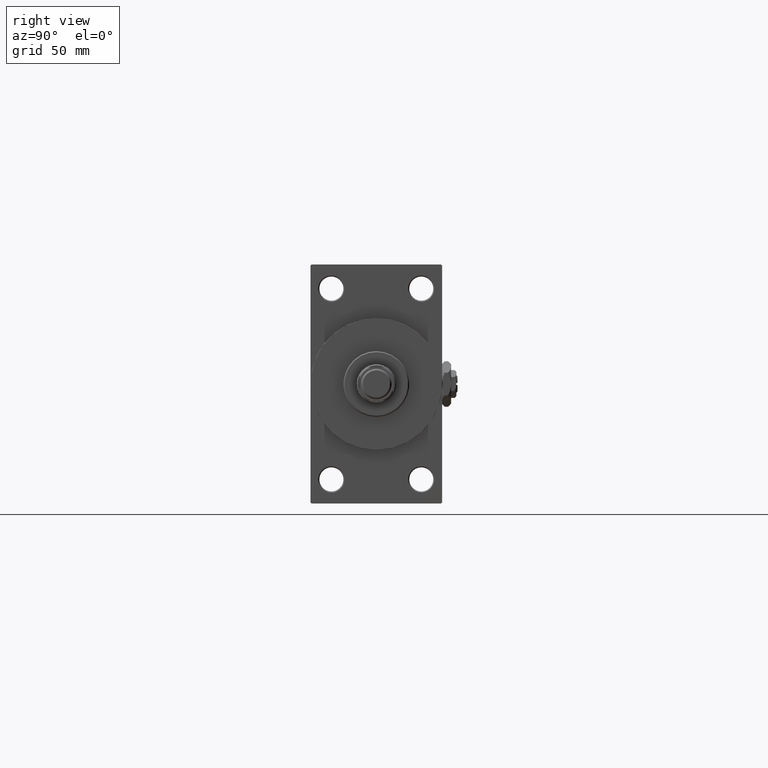
[diagram: clean part render]
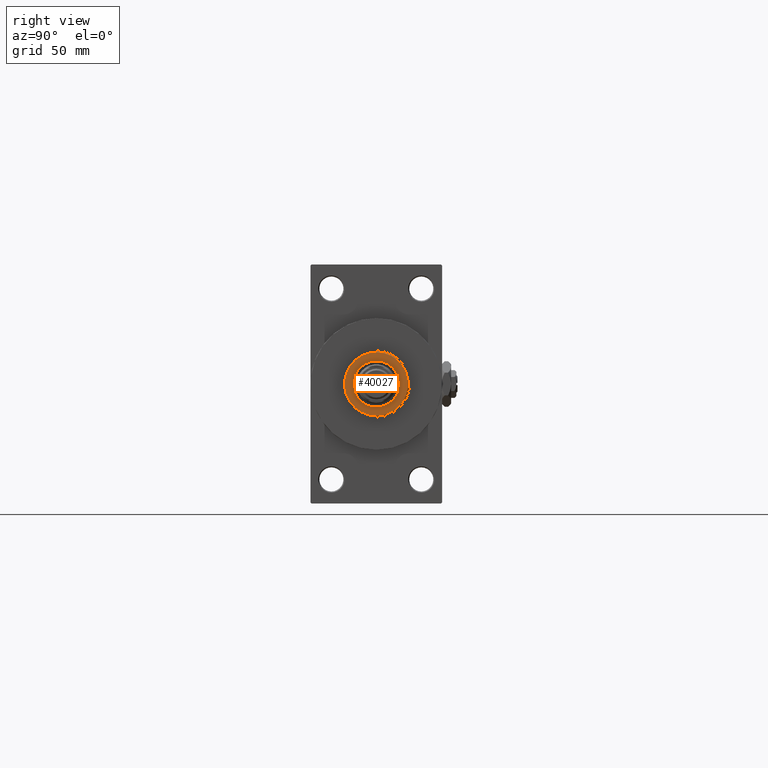
[diagram: same view with one face highlighted and labeled with its STEP entity id]
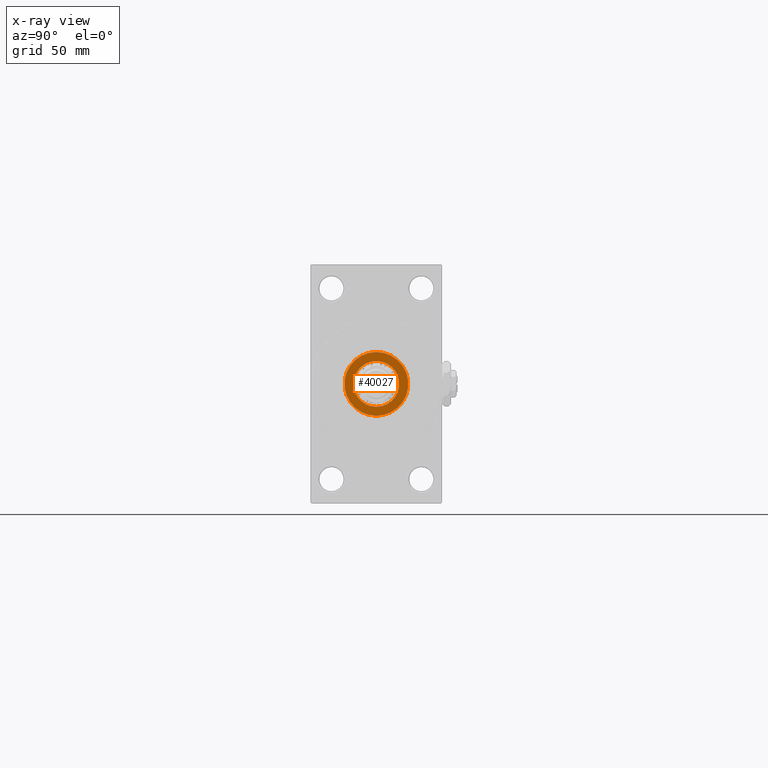
[diagram: x-ray of the same camera — body ghosted, the highlighted face saturated]
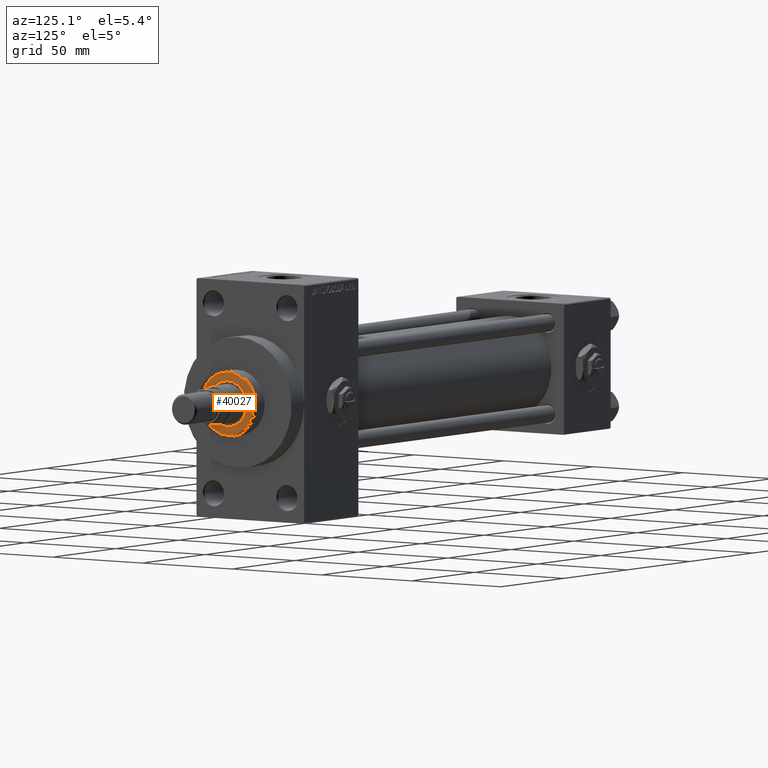
[diagram: same view with one face highlighted and labeled with its STEP entity id]
A machine part, right view. The second image highlights one B-rep face of the part: STEP entity #40027.
The next image is the same camera in x-ray: the body ghosted, the highlighted face saturated — about 0% of this face is hidden behind the body in this view.
A second angle (auxiliary view) of the same face is appended — the face is thin or edge-on in the first view.
In plain terms, the highlighted planar face has unit normal (1, -0, -0).
Its self-contained STEP definition (entity closure, byte-faithful):
#2300 = EDGE_LOOP ( 'NONE', ( #17470, #10586 ) ) ;
#4192 = CARTESIAN_POINT ( 'NONE',  ( 0.000000000000000000, 0.000000000000000000, 51.25999999999999801 ) ) ;
#4679 = DIRECTION ( 'NONE',  ( 1.000000000000000000, 0.000000000000000000, 0.000000000000000000 ) ) ;
#4997 = AXIS2_PLACEMENT_3D ( 'NONE', #32121, #24571, #40665 ) ;
#5178 = FACE_BOUND ( 'NONE', #39944, .T. ) ;
#5452 = DIRECTION ( 'NONE',  ( 0.000000000000000000, 0.000000000000000000, 1.000000000000000000 ) ) ;
#5470 = CARTESIAN_POINT ( 'NONE',  ( 0.000000000000000000, 0.000000000000000000, 51.25999999999999801 ) ) ;
#6627 = DIRECTION ( 'NONE',  ( 0.000000000000000000, 0.000000000000000000, 1.000000000000000000 ) ) ;
#8357 = CIRCLE ( 'NONE', #18019, 14.49999999999999112 ) ;
#10228 = DIRECTION ( 'NONE',  ( 0.000000000000000000, 0.000000000000000000, 1.000000000000000000 ) ) ;
#10586 = ORIENTED_EDGE ( 'NONE', *, *, #29776, .T. ) ;
#12739 = CARTESIAN_POINT ( 'NONE',  ( 0.000000000000000000, 0.000000000000000000, 51.25999999999999801 ) ) ;
#12791 = VERTEX_POINT ( 'NONE', #35207 ) ;
#13695 = CARTESIAN_POINT ( 'NONE',  ( 0.000000000000000000, 0.000000000000000000, 51.25999999999999801 ) ) ;
#16545 = DIRECTION ( 'NONE',  ( 1.000000000000000000, 0.000000000000000000, 0.000000000000000000 ) ) ;
#16631 = VERTEX_POINT ( 'NONE', #45402 ) ;
#16670 = EDGE_CURVE ( 'NONE', #16631, #12791, #48987, .T. ) ;
#16815 = AXIS2_PLACEMENT_3D ( 'NONE', #4192, #20032, #4679 ) ;
#17470 = ORIENTED_EDGE ( 'NONE', *, *, #18312, .T. ) ;
#18019 = AXIS2_PLACEMENT_3D ( 'NONE', #12739, #5452, #16545 ) ;
#18312 = EDGE_CURVE ( 'NONE', #40812, #36775, #45753, .T. ) ;
#20032 = DIRECTION ( 'NONE',  ( 0.000000000000000000, 0.000000000000000000, 1.000000000000000000 ) ) ;
#23256 = ORIENTED_EDGE ( 'NONE', *, *, #47248, .F. ) ;
#24571 = DIRECTION ( 'NONE',  ( 0.000000000000000000, 0.000000000000000000, 1.000000000000000000 ) ) ;
#26006 = CIRCLE ( 'NONE', #33252, 10.50000000000000000 ) ;
#26011 = CARTESIAN_POINT ( 'NONE',  ( 14.49999999999999112, 1.806354028742345013E-15, 51.25999999999999801 ) ) ;
#28343 = PLANE ( 'NONE',  #4997 ) ;
#28371 = ORIENTED_EDGE ( 'NONE', *, *, #16670, .F. ) ;
#29776 = EDGE_CURVE ( 'NONE', #36775, #40812, #8357, .T. ) ;
#32121 = CARTESIAN_POINT ( 'NONE',  ( 0.000000000000000000, 0.000000000000000000, 51.25999999999999801 ) ) ;
#32675 = DIRECTION ( 'NONE',  ( 1.000000000000000000, 0.000000000000000000, 0.000000000000000000 ) ) ;
#33252 = AXIS2_PLACEMENT_3D ( 'NONE', #5470, #10228, #32675 ) ;
#35207 = CARTESIAN_POINT ( 'NONE',  ( -10.50000000000000000, 1.285879139104720831E-15, 51.25999999999999801 ) ) ;
#36144 = AXIS2_PLACEMENT_3D ( 'NONE', #13695, #6627, #41382 ) ;
#36775 = VERTEX_POINT ( 'NONE', #26011 ) ;
#39944 = EDGE_LOOP ( 'NONE', ( #28371, #23256 ) ) ;
#40027 = ADVANCED_FACE ( 'NONE', ( #5178, #40413 ), #28343, .T. ) ;
#40413 = FACE_OUTER_BOUND ( 'NONE', #2300, .T. ) ;
#40665 = DIRECTION ( 'NONE',  ( 1.000000000000000000, 0.000000000000000000, -0.000000000000000000 ) ) ;
#40812 = VERTEX_POINT ( 'NONE', #43713 ) ;
#41382 = DIRECTION ( 'NONE',  ( 1.000000000000000000, 0.000000000000000000, 0.000000000000000000 ) ) ;
#43713 = CARTESIAN_POINT ( 'NONE',  ( -14.49999999999999112, 0.000000000000000000, 51.25999999999999801 ) ) ;
#45402 = CARTESIAN_POINT ( 'NONE',  ( 10.50000000000000000, 0.000000000000000000, 51.25999999999999801 ) ) ;
#45753 = CIRCLE ( 'NONE', #16815, 14.49999999999999112 ) ;
#47248 = EDGE_CURVE ( 'NONE', #12791, #16631, #26006, .T. ) ;
#48987 = CIRCLE ( 'NONE', #36144, 10.50000000000000000 ) ;